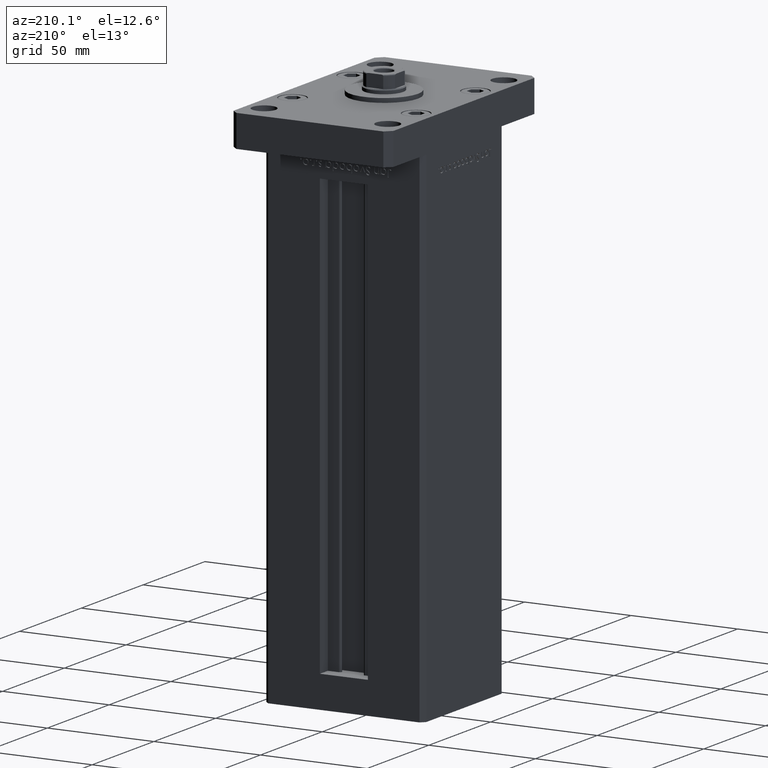
[diagram: clean part render]
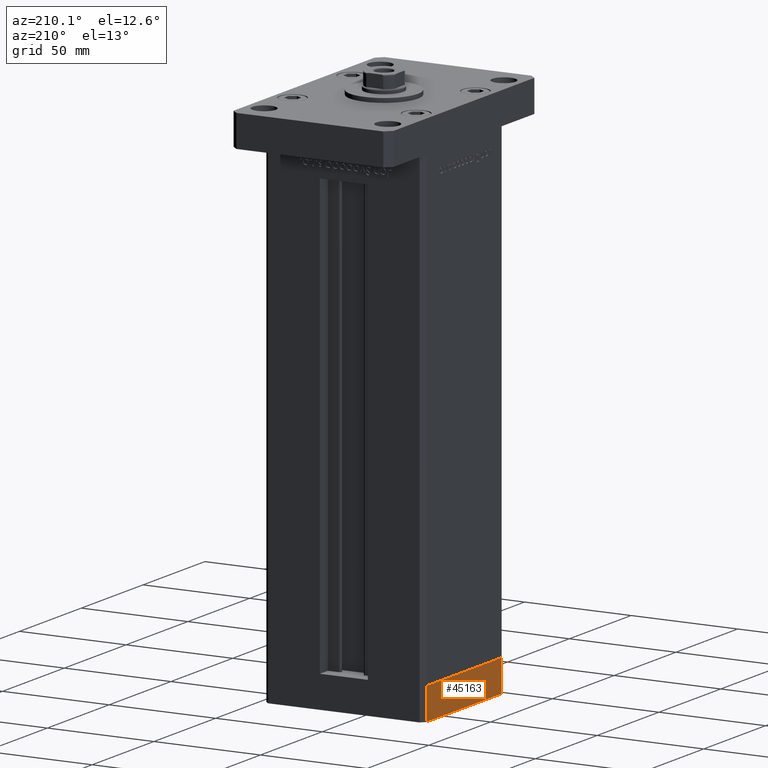
[diagram: same view with one face highlighted and labeled with its STEP entity id]
A machine part, auxiliary view. The second image highlights one B-rep face of the part: STEP entity #45163.
In plain terms, the highlighted planar face has unit normal (-1, 0, 0).
Its self-contained STEP definition (entity closure, byte-faithful):
#1689 = EDGE_CURVE ( 'NONE', #16557, #34821, #49922, .T. ) ;
#2819 = CARTESIAN_POINT ( 'NONE',  ( 37.50000000000001421, -30.50000000000000711, -15.00000000000000000 ) ) ;
#3079 = DIRECTION ( 'NONE',  ( -1.478780668045803018E-15, 1.000000000000000000, 0.000000000000000000 ) ) ;
#6881 = FACE_OUTER_BOUND ( 'NONE', #37990, .T. ) ;
#8863 = CARTESIAN_POINT ( 'NONE',  ( 37.49999999999992184, 30.50000000000001066, -15.00000000000000000 ) ) ;
#9353 = ORIENTED_EDGE ( 'NONE', *, *, #19972, .F. ) ;
#13997 = VERTEX_POINT ( 'NONE', #21997 ) ;
#15293 = VECTOR ( 'NONE', #32952, 1000.000000000000000 ) ;
#15792 = DIRECTION ( 'NONE',  ( 1.000000000000000000, 1.478780668045803018E-15, -0.000000000000000000 ) ) ;
#16391 = CARTESIAN_POINT ( 'NONE',  ( 37.50000000000001421, -30.50000000000000711, -15.00000000000000000 ) ) ;
#16557 = VERTEX_POINT ( 'NONE', #8863 ) ;
#16863 = EDGE_CURVE ( 'NONE', #13997, #27832, #46214, .T. ) ;
#16931 = LINE ( 'NONE', #16391, #15293 ) ;
#17343 = CARTESIAN_POINT ( 'NONE',  ( 37.49999999999992184, 30.50000000000001066, -15.00000000000000000 ) ) ;
#17595 = CARTESIAN_POINT ( 'NONE',  ( 37.49999999999992184, 30.50000000000001066, 0.000000000000000000 ) ) ;
#19647 = DIRECTION ( 'NONE',  ( -1.478780668045802821E-15, 1.000000000000000000, 0.000000000000000000 ) ) ;
#19972 = EDGE_CURVE ( 'NONE', #27832, #34821, #28063, .T. ) ;
#20125 = PLANE ( 'NONE',  #49141 ) ;
#21067 = VECTOR ( 'NONE', #19647, 1000.000000000000000 ) ;
#21997 = CARTESIAN_POINT ( 'NONE',  ( 37.50000000000001421, -30.50000000000000711, -15.00000000000000000 ) ) ;
#24773 = ORIENTED_EDGE ( 'NONE', *, *, #16863, .F. ) ;
#26675 = CARTESIAN_POINT ( 'NONE',  ( 37.50000000000001421, -30.50000000000000711, -15.00000000000000000 ) ) ;
#27207 = DIRECTION ( 'NONE',  ( 0.000000000000000000, 0.000000000000000000, 1.000000000000000000 ) ) ;
#27832 = VERTEX_POINT ( 'NONE', #41022 ) ;
#28063 = LINE ( 'NONE', #31867, #21067 ) ;
#29685 = VECTOR ( 'NONE', #27207, 1000.000000000000000 ) ;
#31867 = CARTESIAN_POINT ( 'NONE',  ( 37.50000000000001421, -30.50000000000000711, 0.000000000000000000 ) ) ;
#32896 = ORIENTED_EDGE ( 'NONE', *, *, #1689, .T. ) ;
#32952 = DIRECTION ( 'NONE',  ( -1.478780668045802821E-15, 1.000000000000000000, 0.000000000000000000 ) ) ;
#33209 = EDGE_CURVE ( 'NONE', #13997, #16557, #16931, .T. ) ;
#33896 = DIRECTION ( 'NONE',  ( 0.000000000000000000, 0.000000000000000000, 1.000000000000000000 ) ) ;
#34821 = VERTEX_POINT ( 'NONE', #17595 ) ;
#37990 = EDGE_LOOP ( 'NONE', ( #9353, #24773, #45046, #32896 ) ) ;
#41022 = CARTESIAN_POINT ( 'NONE',  ( 37.50000000000001421, -30.50000000000000711, 0.000000000000000000 ) ) ;
#45046 = ORIENTED_EDGE ( 'NONE', *, *, #33209, .T. ) ;
#45163 = ADVANCED_FACE ( 'NONE', ( #6881 ), #20125, .T. ) ;
#46214 = LINE ( 'NONE', #26675, #29685 ) ;
#49141 = AXIS2_PLACEMENT_3D ( 'NONE', #2819, #15792, #3079 ) ;
#49922 = LINE ( 'NONE', #17343, #51310 ) ;
#51310 = VECTOR ( 'NONE', #33896, 1000.000000000000000 ) ;